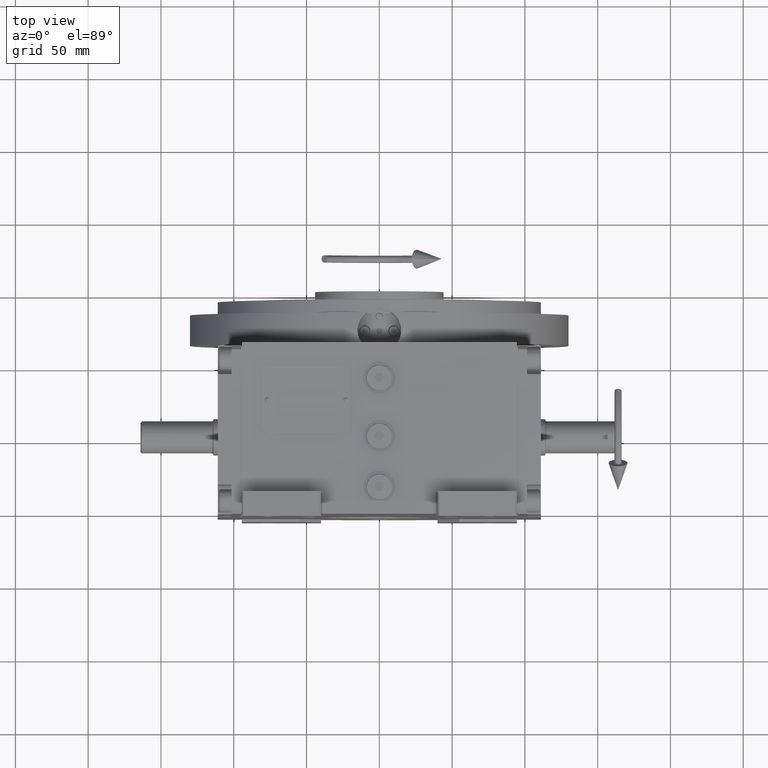
[diagram: clean part render]
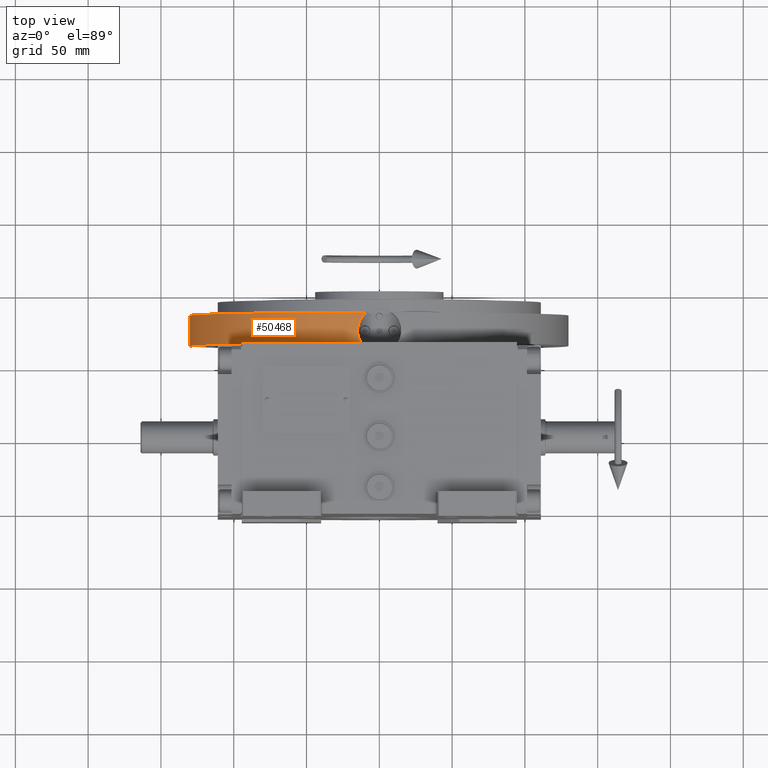
[diagram: same view with one face highlighted and labeled with its STEP entity id]
A machine part, top view. The second image highlights one B-rep face of the part: STEP entity #50468.
In plain terms, the highlighted cylindrical surface (partial cylindrical patch) has radius 130 mm, axis along (0, 1, 0).
Its self-contained STEP definition (entity closure, byte-faithful):
#245 = CARTESIAN_POINT ( 'NONE',  ( -13.22535772275536736, -129.3284461078462186, 1.266207750108006236 ) ) ;
#689 = DIRECTION ( 'NONE',  ( 0.000000000000000000, 0.000000000000000000, 1.000000000000000000 ) ) ;
#3631 = CARTESIAN_POINT ( 'NONE',  ( -10.26699593847754421, -129.5965674309751421, 19.50457521302365294 ) ) ;
#3697 = EDGE_CURVE ( 'NONE', #49304, #66150, #11223, .T. ) ;
#4685 = DIRECTION ( 'NONE',  ( 0.06378124596837327076, -0.9979639034868555969, 0.000000000000000000 ) ) ;
#5320 = CARTESIAN_POINT ( 'NONE',  ( -8.291561975888519953, -129.7353074532911990, 21.00000000000000355 ) ) ;
#7192 = CARTESIAN_POINT ( 'NONE',  ( -15.00143218934681499, -129.1315215487281591, 8.499986352081439378 ) ) ;
#7304 = DIRECTION ( 'NONE',  ( 0.000000000000000000, 0.000000000000000000, -1.000000000000000000 ) ) ;
#7798 = CARTESIAN_POINT ( 'NONE',  ( -12.59150776379347114, -129.3888748424342907, 16.65722266484502256 ) ) ;
#8291 = EDGE_CURVE ( 'NONE', #48885, #66150, #25817, .T. ) ;
#10947 = CARTESIAN_POINT ( 'NONE',  ( -14.53309206860593683, -129.1851249358394966, 4.769104516386164505 ) ) ;
#11223 = B_SPLINE_CURVE_WITH_KNOTS ( 'NONE', 3,
 ( #13618, #51166, #56344, #45011, #29859, #19169, #50847, #34674, #66043, #7798, #55666, #67041, #24986, #3631, #24659, #14307 ),
 .UNSPECIFIED., .F., .F.,
 ( 4, 2, 2, 2, 2, 2, 2, 4 ),
 ( 0.3795227713236504208, 0.4570824249081946733, 0.5346420784927389258, 0.6897613856618273198, 0.7285412124540990852, 0.7673210392463709617, 0.8448806928309138264, 1.000000000000000000 ),
 .UNSPECIFIED. ) ;
#11276 = CIRCLE ( 'NONE', #34438, 130.0000000000000000 ) ;
#13412 = CARTESIAN_POINT ( 'NONE',  ( -12.35920709430827813, -129.4111664424673904, 0.000000000000000000 ) ) ;
#13618 = CARTESIAN_POINT ( 'NONE',  ( -15.00143218934681499, -129.1315215487281591, 8.499986352081439378 ) ) ;
#14118 = B_SPLINE_CURVE_WITH_KNOTS ( 'NONE', 3,
 ( #47487, #245, #21300, #58149, #10947, #26814, #53690, #27505, #44382, #65401 ),
 .UNSPECIFIED., .F., .F.,
 ( 4, 2, 2, 2, 4 ),
 ( 0.000000000000000000, 0.1897613856618252937, 0.2372017320772815963, 0.2846420784927379266, 0.3795227713236504208 ),
 .UNSPECIFIED. ) ;
#14307 = CARTESIAN_POINT ( 'NONE',  ( -8.291561975888519953, -129.7353074532911990, 21.00000000000000355 ) ) ;
#18207 = EDGE_CURVE ( 'NONE', #45838, #48885, #36915, .T. ) ;
#19169 = CARTESIAN_POINT ( 'NONE',  ( -14.24411979220796454, -129.2176327172837489, 13.36828683366709214 ) ) ;
#20341 = CARTESIAN_POINT ( 'NONE',  ( 0.000000000000000000, 0.000000000000000000, 0.000000000000000000 ) ) ;
#20677 = CYLINDRICAL_SURFACE ( 'NONE', #23794, 130.0000000000000000 ) ;
#21300 = CARTESIAN_POINT ( 'NONE',  ( -13.88004516542396161, -129.2576652649308073, 2.615462242618016298 ) ) ;
#23794 = AXIS2_PLACEMENT_3D ( 'NONE', #20341, #41691, #62738 ) ;
#24659 = CARTESIAN_POINT ( 'NONE',  ( -9.334449332471535854, -129.6686550876343915, 20.30410600980846780 ) ) ;
#24986 = CARTESIAN_POINT ( 'NONE',  ( -11.50077343924198559, -129.4909363012416748, 18.14982380795652261 ) ) ;
#25172 = FACE_OUTER_BOUND ( 'NONE', #36330, .T. ) ;
#25817 = CIRCLE ( 'NONE', #65514, 130.0000000000000568 ) ;
#26814 = CARTESIAN_POINT ( 'NONE',  ( -14.70253640140903961, -129.1659502079718607, 5.506016819442672627 ) ) ;
#27505 = CARTESIAN_POINT ( 'NONE',  ( -14.94599957172524540, -129.1380282583018300, 7.002798283392193568 ) ) ;
#29859 = CARTESIAN_POINT ( 'NONE',  ( -14.69513779241925633, -129.1668526120003548, 11.56924557906078910 ) ) ;
#33127 = EDGE_CURVE ( 'NONE', #68160, #45838, #11276, .T. ) ;
#33184 = CARTESIAN_POINT ( 'NONE',  ( 2.309263891220324657E-14, 2.248201624865939628E-15, 0.000000000000000000 ) ) ;
#34288 = ORIENTED_EDGE ( 'NONE', *, *, #33127, .F. ) ;
#34438 = AXIS2_PLACEMENT_3D ( 'NONE', #33184, #7304, #65899 ) ;
#34674 = CARTESIAN_POINT ( 'NONE',  ( -13.07323126914367428, -129.3410689267132057, 15.86317561004781496 ) ) ;
#35085 = EDGE_CURVE ( 'NONE', #68160, #49304, #14118, .T. ) ;
#35922 = ORIENTED_EDGE ( 'NONE', *, *, #3697, .T. ) ;
#36087 = DIRECTION ( 'NONE',  ( 0.000000000000000000, 0.000000000000000000, 1.000000000000000000 ) ) ;
#36330 = EDGE_LOOP ( 'NONE', ( #41405, #34288, #65542, #35922, #38458 ) ) ;
#36635 = VECTOR ( 'NONE', #689, 1000.000000000000000 ) ;
#36915 = LINE ( 'NONE', #47582, #36635 ) ;
#38458 = ORIENTED_EDGE ( 'NONE', *, *, #8291, .F. ) ;
#41405 = ORIENTED_EDGE ( 'NONE', *, *, #18207, .F. ) ;
#41691 = DIRECTION ( 'NONE',  ( 0.000000000000000000, 0.000000000000000000, 1.000000000000000000 ) ) ;
#44382 = CARTESIAN_POINT ( 'NONE',  ( -15.00305849549420500, -129.1313603886328565, 7.751017832233382698 ) ) ;
#45011 = CARTESIAN_POINT ( 'NONE',  ( -14.81091454694562515, -129.1535627435243043, 10.95144805384406261 ) ) ;
#45838 = VERTEX_POINT ( 'NONE', #46722 ) ;
#46722 = CARTESIAN_POINT ( 'NONE',  ( -130.0000000000000000, 1.592040838891559450E-14, 0.000000000000000000 ) ) ;
#47487 = CARTESIAN_POINT ( 'NONE',  ( -12.35920709430827813, -129.4111664424673904, 0.000000000000000000 ) ) ;
#47582 = CARTESIAN_POINT ( 'NONE',  ( -130.0000000000000000, 1.592040838891559450E-14, 0.000000000000000000 ) ) ;
#48885 = VERTEX_POINT ( 'NONE', #49313 ) ;
#49304 = VERTEX_POINT ( 'NONE', #7192 ) ;
#49313 = CARTESIAN_POINT ( 'NONE',  ( -130.0000000000000000, 1.592040838891559450E-14, 21.00000000000000355 ) ) ;
#50468 = ADVANCED_FACE ( 'NONE', ( #25172 ), #20677, .T. ) ;
#50847 = CARTESIAN_POINT ( 'NONE',  ( -13.80235316895415387, -129.2665418340730810, 14.50945535420595256 ) ) ;
#51166 = CARTESIAN_POINT ( 'NONE',  ( -15.00270569908994034, -129.1314013775580918, 9.112226185417586777 ) ) ;
#53690 = CARTESIAN_POINT ( 'NONE',  ( -14.77449224127621896, -129.1577240834727149, 5.881592422037989820 ) ) ;
#55666 = CARTESIAN_POINT ( 'NONE',  ( -12.41898113420018923, -129.4055676129082713, 16.91722749714064022 ) ) ;
#56344 = CARTESIAN_POINT ( 'NONE',  ( -14.96428873349310784, -129.1358820071440903, 9.724966490998067314 ) ) ;
#56408 = CARTESIAN_POINT ( 'NONE',  ( -3.375077994860475252E-14, -8.312794896880859596E-15, 21.00000000000000355 ) ) ;
#58149 = CARTESIAN_POINT ( 'NONE',  ( -14.43521854074078803, -129.1961181533795298, 4.405838786258034823 ) ) ;
#62738 = DIRECTION ( 'NONE',  ( 1.000000000000000000, 0.000000000000000000, 0.000000000000000000 ) ) ;
#65401 = CARTESIAN_POINT ( 'NONE',  ( -15.00143218934681499, -129.1315215487281591, 8.499986352081439378 ) ) ;
#65514 = AXIS2_PLACEMENT_3D ( 'NONE', #56408, #36087, #4685 ) ;
#65542 = ORIENTED_EDGE ( 'NONE', *, *, #35085, .T. ) ;
#65899 = DIRECTION ( 'NONE',  ( -0.09507082380237159847, -0.9954705110959030101, 0.000000000000000000 ) ) ;
#66043 = CARTESIAN_POINT ( 'NONE',  ( -12.91856023145844645, -129.3566302989645180, 16.13028264147461499 ) ) ;
#66150 = VERTEX_POINT ( 'NONE', #5320 ) ;
#67041 = CARTESIAN_POINT ( 'NONE',  ( -11.88452861216700462, -129.4561163722632955, 17.67233080461916117 ) ) ;
#68160 = VERTEX_POINT ( 'NONE', #13412 ) ;